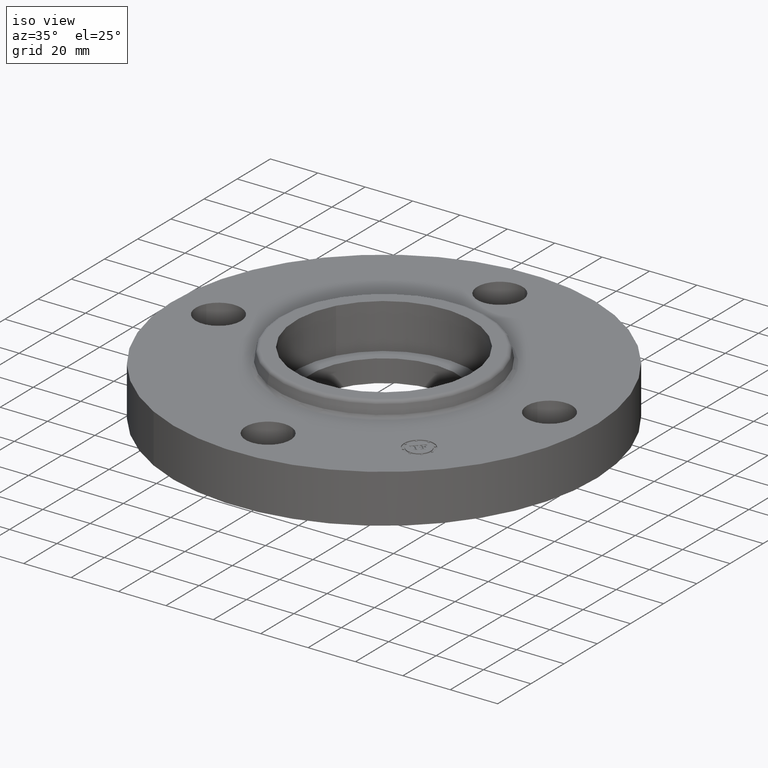
[diagram: clean part render]
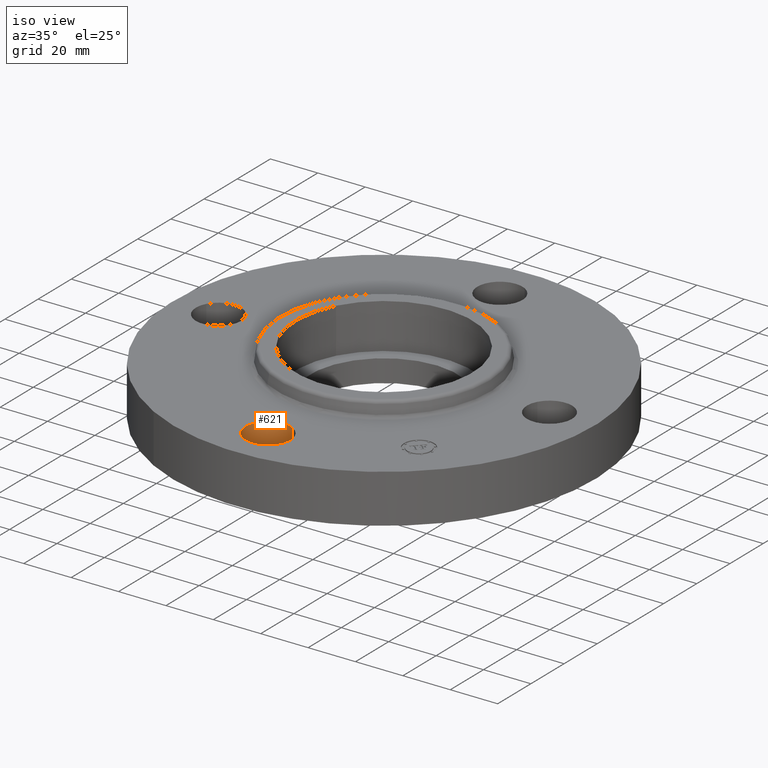
[diagram: same view with one face highlighted and labeled with its STEP entity id]
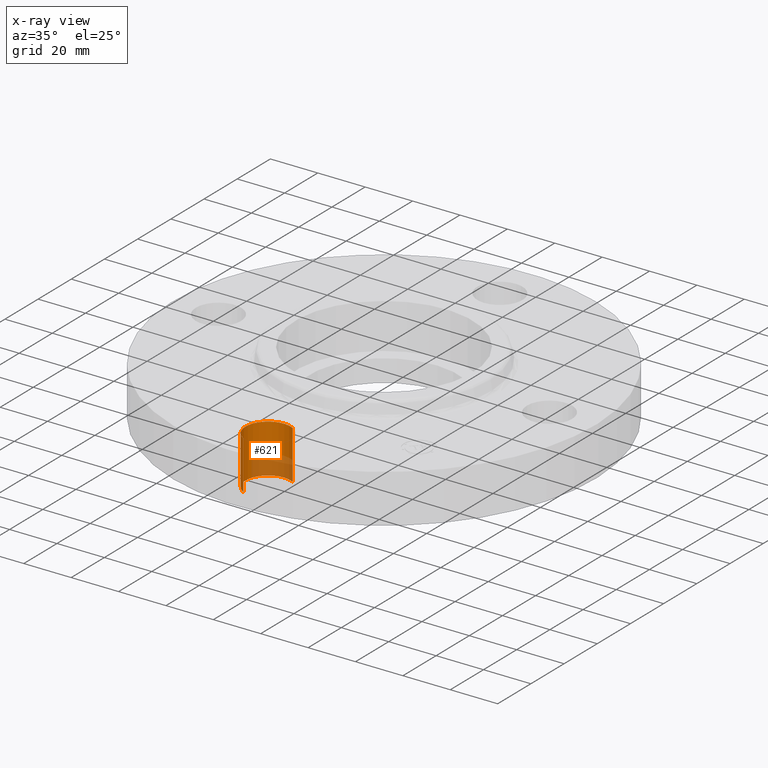
[diagram: x-ray of the same camera — body ghosted, the highlighted face saturated]
A machine part, iso view. The second image highlights one B-rep face of the part: STEP entity #621.
The next image is the same camera in x-ray: the body ghosted, the highlighted face saturated — about 32% of this face is hidden behind the body in this view.
In plain terms, the highlighted cylindrical surface (edge-blend (fillet) strip) has radius 9.525 mm, axis along (0, -0, -1).
Its self-contained STEP definition (entity closure, byte-faithful):
#247=AXIS2_PLACEMENT_3D('Circle Axis2P3D',#245,#246,$) ;
#594=AXIS2_PLACEMENT_3D('Cylinder Axis2P3D',#591,#592,#593) ;
#612=AXIS2_PLACEMENT_3D('Circle Axis2P3D',#610,#611,$) ;
#240=CARTESIAN_POINT('Vertex',(0.179784576977,-2.4209065393,0.)) ;
#242=CARTESIAN_POINT('Vertex',(-0.179784576977,-3.07909346072,0.)) ;
#245=CARTESIAN_POINT('Axis2P3D Location',(-4.89547160465E-016,-2.75000000001,0.)) ;
#591=CARTESIAN_POINT('Axis2P3D Location',(-3.91093534219E-016,-2.75000000001,0.806062992129)) ;
#596=CARTESIAN_POINT('Line Origine',(-0.179784576977,-3.07909346072,0.405000000002)) ;
#600=CARTESIAN_POINT('Vertex',(-0.179784576977,-3.07909346072,0.810000000003)) ;
#603=CARTESIAN_POINT('Line Origine',(0.179784576977,-2.4209065393,0.405000000002)) ;
#607=CARTESIAN_POINT('Vertex',(0.179784576977,-2.4209065393,0.810000000003)) ;
#610=CARTESIAN_POINT('Axis2P3D Location',(-3.91093534219E-016,-2.75000000001,0.810000000003)) ;
#246=DIRECTION('Axis2P3D Direction',(0.,0.,-0.0393700787402)) ;
#592=DIRECTION('Axis2P3D Direction',(0.,-0.,-0.0393700787402)) ;
#593=DIRECTION('Axis2P3D XDirection',(0.0188750212049,0.0345504945626,-0.)) ;
#597=DIRECTION('Vector Direction',(0.,0.,-0.0393700787402)) ;
#604=DIRECTION('Vector Direction',(0.,0.,-0.0393700787402)) ;
#611=DIRECTION('Axis2P3D Direction',(0.,-0.,-0.0393700787402)) ;
#598=VECTOR('Line Direction',#597,0.0393700787402) ;
#605=VECTOR('Line Direction',#604,0.0393700787402) ;
#616=ORIENTED_EDGE('',*,*,#602,.F.) ;
#617=ORIENTED_EDGE('',*,*,#249,.T.) ;
#618=ORIENTED_EDGE('',*,*,#609,.T.) ;
#619=ORIENTED_EDGE('',*,*,#614,.F.) ;
#621=ADVANCED_FACE('PartBody',(#620),#595,.F.) ;
#248=CIRCLE('generated circle',#247,0.375000000002) ;
#613=CIRCLE('generated circle',#612,0.375000000002) ;
#595=CYLINDRICAL_SURFACE('generated cylinder',#594,0.375000000002) ;
#249=EDGE_CURVE('',#243,#241,#248,.T.) ;
#602=EDGE_CURVE('',#243,#601,#599,.F.) ;
#609=EDGE_CURVE('',#241,#608,#606,.F.) ;
#614=EDGE_CURVE('',#601,#608,#613,.T.) ;
#615=EDGE_LOOP('',(#616,#617,#618,#619)) ;
#620=FACE_OUTER_BOUND('',#615,.T.) ;
#599=LINE('Line',#596,#598) ;
#606=LINE('Line',#603,#605) ;
#241=VERTEX_POINT('',#240) ;
#243=VERTEX_POINT('',#242) ;
#601=VERTEX_POINT('',#600) ;
#608=VERTEX_POINT('',#607) ;